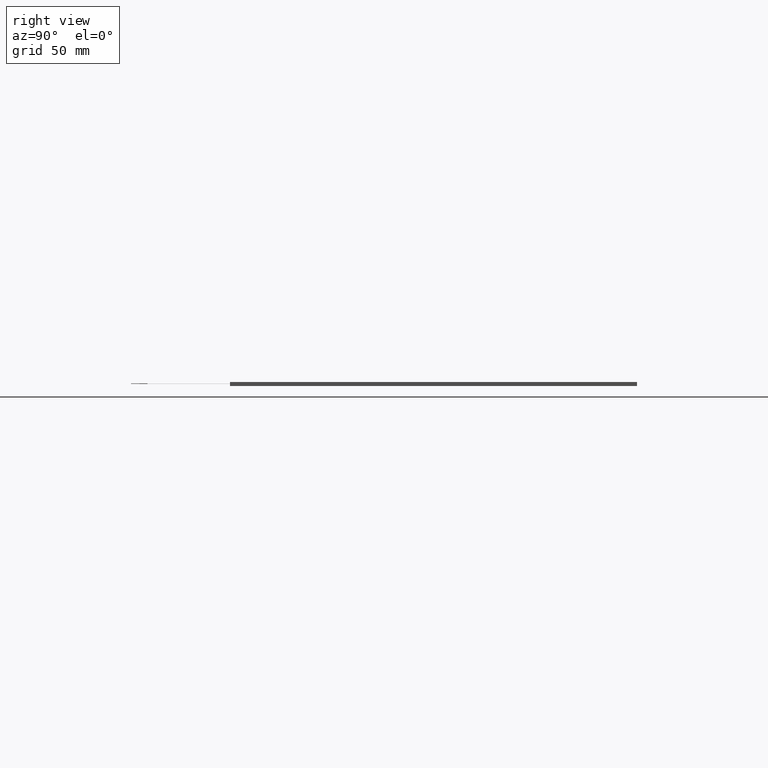
[diagram: clean part render]
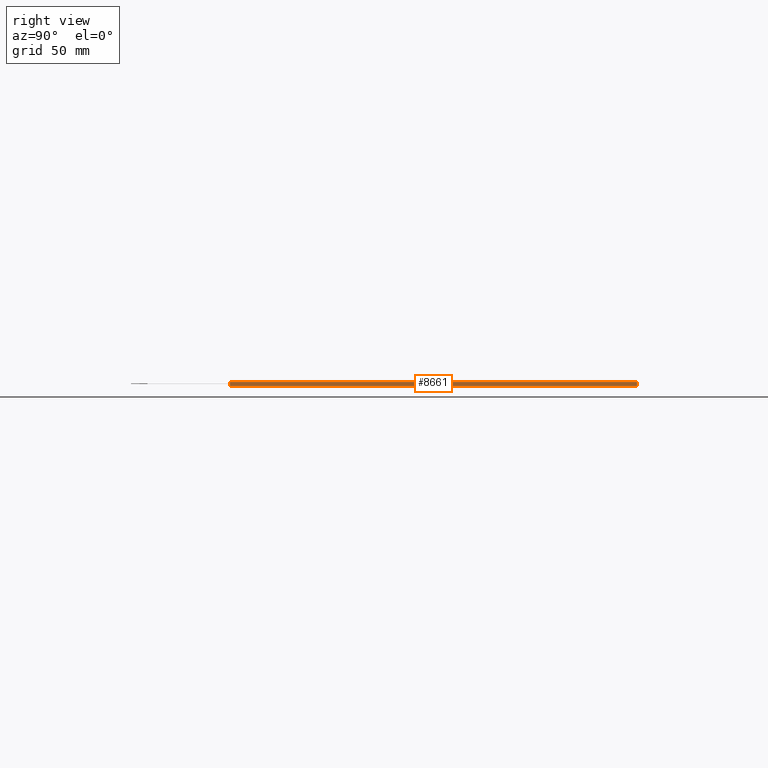
[diagram: same view with one face highlighted and labeled with its STEP entity id]
A machine part, right view. The second image highlights one B-rep face of the part: STEP entity #8661.
In plain terms, the highlighted planar face has unit normal (1, 0, 0).
Its self-contained STEP definition (entity closure, byte-faithful):
#493=PLANE('',#9105);
#905=FACE_OUTER_BOUND('',#1319,.T.);
#1319=EDGE_LOOP('',(#8234,#8235,#8236,#8237));
#2523=LINE('',#13602,#3735);
#2531=LINE('',#13617,#3743);
#2532=LINE('',#13619,#3744);
#2533=LINE('',#13620,#3745);
#3735=VECTOR('',#11149,10.);
#3743=VECTOR('',#11161,10.);
#3744=VECTOR('',#11164,10.);
#3745=VECTOR('',#11165,10.);
#4566=VERTEX_POINT('',#13598);
#4568=VERTEX_POINT('',#13601);
#4572=VERTEX_POINT('',#13613);
#4573=VERTEX_POINT('',#13615);
#5787=EDGE_CURVE('',#4566,#4568,#2523,.T.);
#5795=EDGE_CURVE('',#4572,#4573,#2531,.T.);
#5796=EDGE_CURVE('',#4572,#4566,#2532,.T.);
#5797=EDGE_CURVE('',#4568,#4573,#2533,.T.);
#8234=ORIENTED_EDGE('',*,*,#5796,.F.);
#8235=ORIENTED_EDGE('',*,*,#5795,.T.);
#8236=ORIENTED_EDGE('',*,*,#5797,.F.);
#8237=ORIENTED_EDGE('',*,*,#5787,.F.);
#8661=ADVANCED_FACE('',(#905),#493,.T.);
#9105=AXIS2_PLACEMENT_3D('',#13618,#11162,#11163);
#11149=DIRECTION('',(0.,0.,-1.));
#11161=DIRECTION('',(0.,0.,-1.));
#11162=DIRECTION('center_axis',(1.,7.20047360924301E-17,0.));
#11163=DIRECTION('ref_axis',(7.20047360924301E-17,-1.,0.));
#11164=DIRECTION('',(-7.20047360924301E-17,1.,0.));
#11165=DIRECTION('',(7.20047360924301E-17,-1.,0.));
#13598=CARTESIAN_POINT('',(159.68,121.39,0.));
#13601=CARTESIAN_POINT('',(159.68,121.39,-2.35));
#13602=CARTESIAN_POINT('',(159.68,121.39,0.));
#13613=CARTESIAN_POINT('',(159.68,-125.31,0.));
#13615=CARTESIAN_POINT('',(159.68,-125.31,-2.35));
#13617=CARTESIAN_POINT('',(159.68,-125.31,0.));
#13618=CARTESIAN_POINT('Origin',(159.68,121.39,0.));
#13619=CARTESIAN_POINT('',(159.68,-125.31,0.));
#13620=CARTESIAN_POINT('',(159.68,-125.31,-2.35));